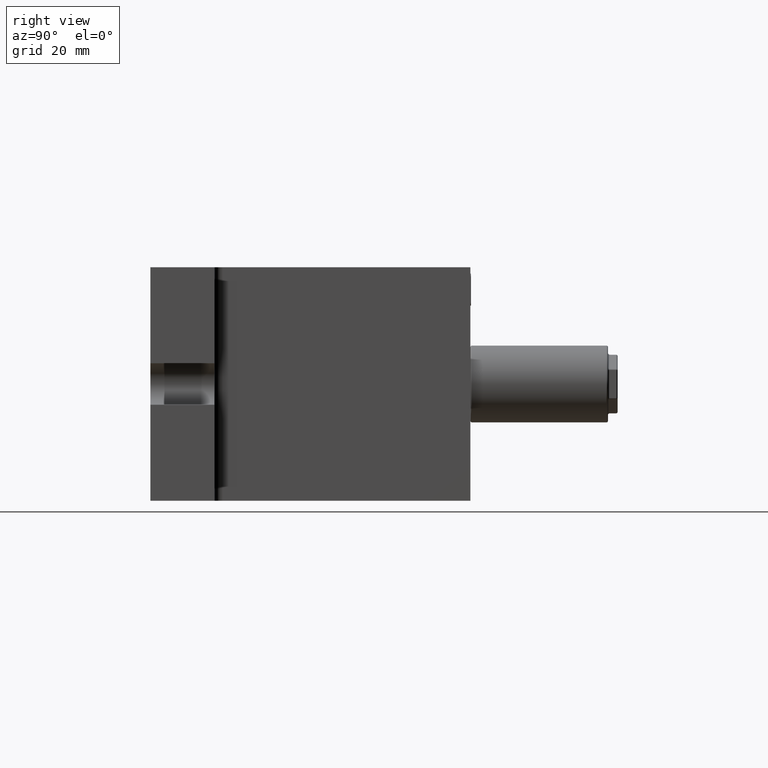
[diagram: clean part render]
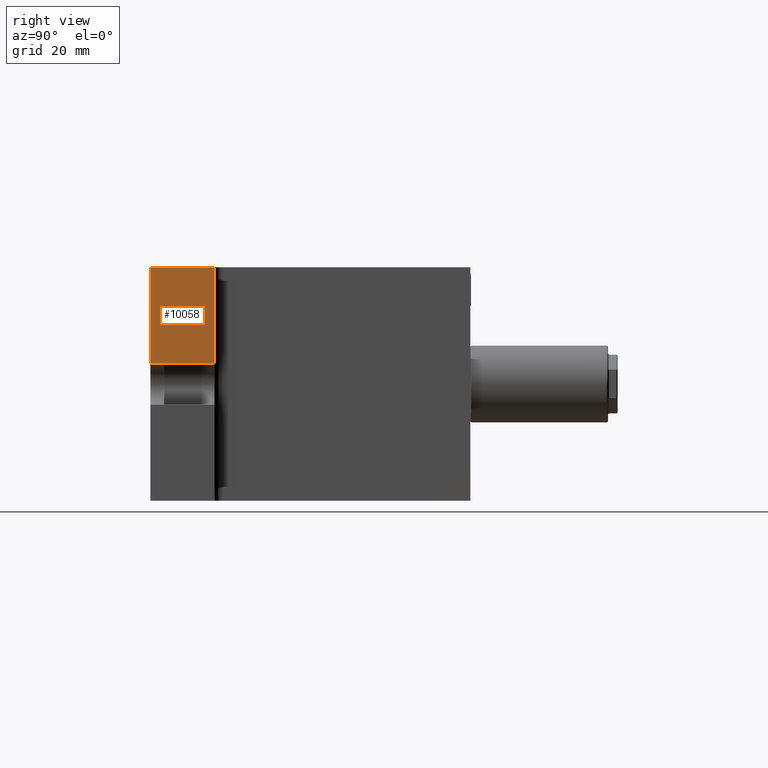
[diagram: same view with one face highlighted and labeled with its STEP entity id]
A machine part, right view. The second image highlights one B-rep face of the part: STEP entity #10058.
In plain terms, the highlighted planar face has unit normal (-1, 0, 0).
Its self-contained STEP definition (entity closure, byte-faithful):
#700 = AXIS2_PLACEMENT_3D ( 'NONE', #23758, #16274, #4666 ) ;
#2731 = CARTESIAN_POINT ( 'NONE',  ( 80.00000000000000000, -50.00000000000000000, 6.500000000000000000 ) ) ;
#2842 = VECTOR ( 'NONE', #18191, 1000.000000000000000 ) ;
#2896 = CARTESIAN_POINT ( 'NONE',  ( 80.00000000000000000, -30.00000000000000000, 6.500000000000000000 ) ) ;
#3428 = CARTESIAN_POINT ( 'NONE',  ( 80.00000000000000000, -50.00000000000000000, 36.50000000000000000 ) ) ;
#3848 = EDGE_LOOP ( 'NONE', ( #14644, #17171, #13971, #22877 ) ) ;
#4666 = DIRECTION ( 'NONE',  ( 0.0000000000000000000, 0.0000000000000000000, 1.000000000000000000 ) ) ;
#5938 = VECTOR ( 'NONE', #23048, 1000.000000000000000 ) ;
#7257 = CARTESIAN_POINT ( 'NONE',  ( 80.00000000000000000, -50.00000000000000000, 6.500000000000000000 ) ) ;
#7984 = LINE ( 'NONE', #2731, #2842 ) ;
#9435 = VERTEX_POINT ( 'NONE', #3428 ) ;
#9437 = VECTOR ( 'NONE', #17313, 1000.000000000000000 ) ;
#9852 = VECTOR ( 'NONE', #19105, 1000.000000000000000 ) ;
#10058 = ADVANCED_FACE ( 'NONE', ( #17168 ), #19939, .F. ) ;
#12256 = VERTEX_POINT ( 'NONE', #20644 ) ;
#13971 = ORIENTED_EDGE ( 'NONE', *, *, #20801, .T. ) ;
#14644 = ORIENTED_EDGE ( 'NONE', *, *, #15491, .T. ) ;
#15491 = EDGE_CURVE ( 'NONE', #9435, #24352, #21969, .T. ) ;
#16274 = DIRECTION ( 'NONE',  ( -1.000000000000000000, 0.0000000000000000000, 0.0000000000000000000 ) ) ;
#17168 = FACE_OUTER_BOUND ( 'NONE', #3848, .T. ) ;
#17171 = ORIENTED_EDGE ( 'NONE', *, *, #21172, .T. ) ;
#17313 = DIRECTION ( 'NONE',  ( 0.0000000000000000000, 1.000000000000000000, 0.0000000000000000000 ) ) ;
#18191 = DIRECTION ( 'NONE',  ( 0.0000000000000000000, 1.000000000000000000, 0.0000000000000000000 ) ) ;
#19105 = DIRECTION ( 'NONE',  ( 0.0000000000000000000, 0.0000000000000000000, 1.000000000000000000 ) ) ;
#19662 = LINE ( 'NONE', #22903, #9437 ) ;
#19939 = PLANE ( 'NONE',  #700 ) ;
#20413 = LINE ( 'NONE', #24852, #9852 ) ;
#20644 = CARTESIAN_POINT ( 'NONE',  ( 80.00000000000000000, -30.00000000000000000, 36.50000000000000000 ) ) ;
#20801 = EDGE_CURVE ( 'NONE', #21241, #12256, #20413, .T. ) ;
#21172 = EDGE_CURVE ( 'NONE', #24352, #21241, #7984, .T. ) ;
#21241 = VERTEX_POINT ( 'NONE', #2896 ) ;
#21921 = EDGE_CURVE ( 'NONE', #9435, #12256, #19662, .T. ) ;
#21969 = LINE ( 'NONE', #24812, #5938 ) ;
#22877 = ORIENTED_EDGE ( 'NONE', *, *, #21921, .F. ) ;
#22903 = CARTESIAN_POINT ( 'NONE',  ( 80.00000000000000000, -50.00000000000000000, 36.50000000000000000 ) ) ;
#23048 = DIRECTION ( 'NONE',  ( 0.0000000000000000000, 0.0000000000000000000, -1.000000000000000000 ) ) ;
#23758 = CARTESIAN_POINT ( 'NONE',  ( 80.00000000000000000, -50.00000000000000000, 36.50000000000000000 ) ) ;
#24352 = VERTEX_POINT ( 'NONE', #7257 ) ;
#24812 = CARTESIAN_POINT ( 'NONE',  ( 80.00000000000000000, -50.00000000000000000, 36.50000000000000000 ) ) ;
#24852 = CARTESIAN_POINT ( 'NONE',  ( 80.00000000000000000, -30.00000000000000000, -36.50000000000000000 ) ) ;